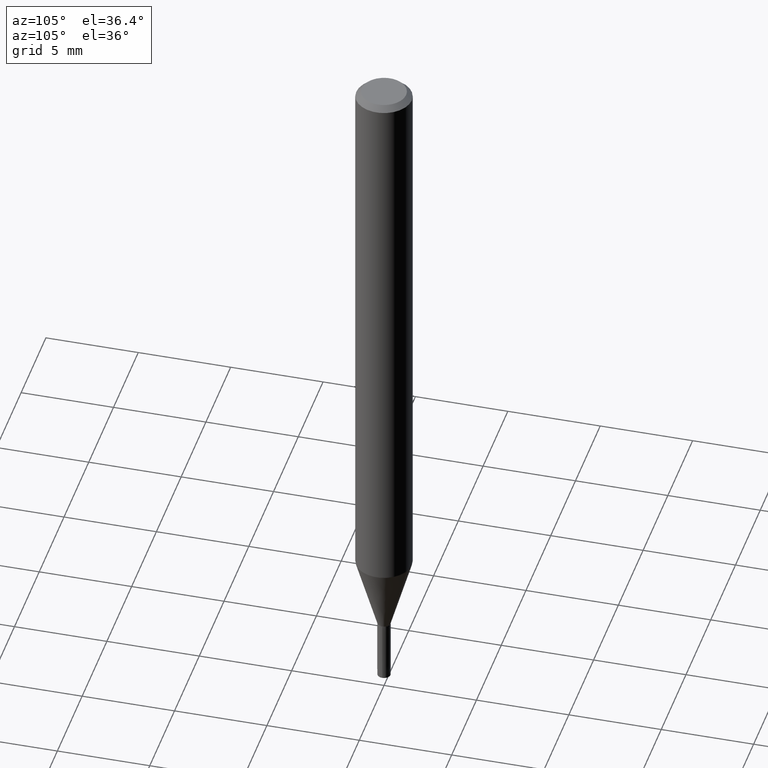
[diagram: clean part render]
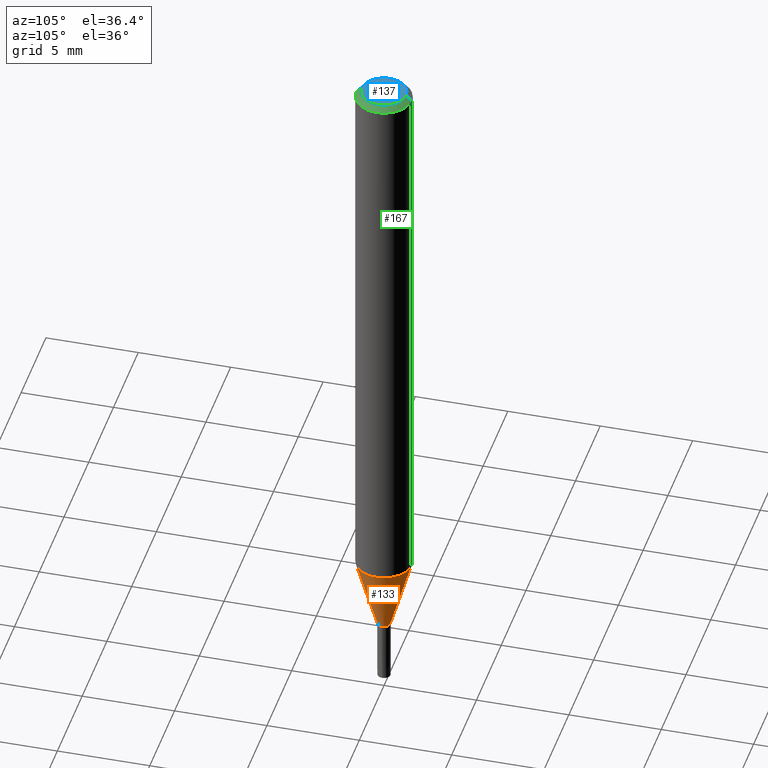
[diagram: same view with three faces highlighted in distinct colors, each labeled with its STEP entity id]
A machine part, auxiliary view with three faces highlighted in distinct colors.
Their STEP definitions:

[orange] entity #133 — the highlighted conical surface has half-angle 16.001 deg.
#91=VERTEX_POINT('',#226);
#105=VERTEX_POINT('',#241);
#113=EDGE_CURVE('',#105,#91,#252,.T.);
#133=ADVANCED_FACE('',(#275),#276,.T.);
#135=EDGE_CURVE('',#91,#157,#278,.T.);
#149=EDGE_CURVE('',#157,#163,#293,.T.);
#151=EDGE_CURVE('',#105,#163,#295,.T.);
#157=VERTEX_POINT('',#301);
#163=VERTEX_POINT('',#308);
#226=CARTESIAN_POINT('',(0.0,0.35,-34.4991339745962));
#241=CARTESIAN_POINT('',(0.0,1.5,-30.489));
#252=LINE('',#395,#396);
#275=FACE_OUTER_BOUND('',#424,.T.);
#276=CONICAL_SURFACE('',#425,0.925,0.279278622561771);
#278=CIRCLE('',#428,0.35);
#293=LINE('',#451,#452);
#295=CIRCLE('',#455,1.5);
#301=CARTESIAN_POINT('',(4.28612223837832E-017,-0.35,-34.4991339745962));
#308=CARTESIAN_POINT('',(1.83690953073357E-016,-1.5,-30.489));
#395=CARTESIAN_POINT('',(-1.1327608772857E-016,0.925,-32.4940669872981));
#396=VECTOR('',#570,1.0);
#424=EDGE_LOOP('',(#609,#610,#611,#612));
#425=AXIS2_PLACEMENT_3D('',#613,#614,#615);
#428=AXIS2_PLACEMENT_3D('',#616,#617,#618);
#451=CARTESIAN_POINT('',(1.1327608772857E-016,-0.925,-32.4940669872981));
#452=VECTOR('',#631,1.0);
#455=AXIS2_PLACEMENT_3D('',#632,#633,#634);
#570=DIRECTION('',(3.37577795527378E-017,-0.275662293008437,-0.96125454496368));
#609=ORIENTED_EDGE('',*,*,#113,.F.);
#610=ORIENTED_EDGE('',*,*,#151,.T.);
#611=ORIENTED_EDGE('',*,*,#149,.F.);
#612=ORIENTED_EDGE('',*,*,#135,.F.);
#613=CARTESIAN_POINT('',(0.0,0.0,-32.4940669872981));
#614=DIRECTION('',(-0.0,-0.0,1.0));
#615=DIRECTION('',(0.0,1.0,0.0));
#616=CARTESIAN_POINT('',(0.0,0.0,-34.4991339745962));
#617=DIRECTION('',(0.0,0.0,-1.0));
#618=DIRECTION('',(0.0,1.0,0.0));
#631=DIRECTION('',(3.37577795527378E-017,-0.275662293008437,0.96125454496368));
#632=CARTESIAN_POINT('',(0.0,0.0,-30.489));
#633=DIRECTION('',(0.0,0.0,-1.0));
#634=DIRECTION('',(0.0,1.0,0.0));

[blue] entity #137 — the highlighted planar face has unit normal (-0, 0, 1).
#115=EDGE_CURVE('',#183,#173,#254,.T.);
#137=ADVANCED_FACE('',(#280),#281,.T.);
#173=VERTEX_POINT('',#320);
#183=VERTEX_POINT('',#330);
#201=EDGE_CURVE('',#173,#183,#350,.T.);
#254=CIRCLE('',#399,1.2);
#280=FACE_OUTER_BOUND('',#430,.T.);
#281=PLANE('',#431);
#320=CARTESIAN_POINT('',(1.46952762458685E-016,-1.2,0.0));
#330=CARTESIAN_POINT('',(0.0,1.2,0.0));
#350=CIRCLE('',#528,1.2);
#399=AXIS2_PLACEMENT_3D('',#571,#572,#573);
#430=EDGE_LOOP('',(#620,#621));
#431=AXIS2_PLACEMENT_3D('',#622,#623,#624);
#528=AXIS2_PLACEMENT_3D('',#692,#693,#694);
#571=CARTESIAN_POINT('',(0.0,0.0,0.0));
#572=DIRECTION('',(0.0,0.0,-1.0));
#573=DIRECTION('',(0.0,1.0,0.0));
#620=ORIENTED_EDGE('',*,*,#115,.F.);
#621=ORIENTED_EDGE('',*,*,#201,.F.);
#622=CARTESIAN_POINT('',(0.0,0.6,0.0));
#623=DIRECTION('',(-0.0,0.0,1.0));
#624=DIRECTION('',(0.0,-1.0,0.0));
#692=CARTESIAN_POINT('',(0.0,0.0,0.0));
#693=DIRECTION('',(0.0,0.0,-1.0));
#694=DIRECTION('',(0.0,1.0,0.0));

[green] entity #167 — the highlighted conical surface has half-angle 45 deg.
#95=VERTEX_POINT('',#231);
#115=EDGE_CURVE('',#183,#173,#254,.T.);
#125=VERTEX_POINT('',#265);
#153=EDGE_CURVE('',#183,#125,#297,.T.);
#167=ADVANCED_FACE('',(#312),#313,.T.);
#173=VERTEX_POINT('',#320);
#181=EDGE_CURVE('',#125,#95,#328,.T.);
#183=VERTEX_POINT('',#330);
#187=EDGE_CURVE('',#95,#173,#335,.T.);
#231=CARTESIAN_POINT('',(1.83690953073357E-016,-1.5,-0.300000000000001));
#254=CIRCLE('',#399,1.2);
#265=CARTESIAN_POINT('',(0.0,1.5,-0.300000000000001));
#297=LINE('',#458,#459);
#312=FACE_OUTER_BOUND('',#475,.T.);
#313=CONICAL_SURFACE('',#476,1.35,0.785398163397447);
#320=CARTESIAN_POINT('',(1.46952762458685E-016,-1.2,0.0));
#328=CIRCLE('',#495,1.5);
#330=CARTESIAN_POINT('',(0.0,1.2,0.0));
#335=LINE('',#503,#504);
#399=AXIS2_PLACEMENT_3D('',#571,#572,#573);
#458=CARTESIAN_POINT('',(-1.65321857766021E-016,1.35,-0.149999999999999));
#459=VECTOR('',#635,1.0);
#475=EDGE_LOOP('',(#645,#646,#647,#648));
#476=AXIS2_PLACEMENT_3D('',#649,#650,#651);
#495=AXIS2_PLACEMENT_3D('',#664,#665,#666);
#503=CARTESIAN_POINT('',(1.65321857766021E-016,-1.35,-0.149999999999999));
#504=VECTOR('',#675,1.0);
#571=CARTESIAN_POINT('',(0.0,0.0,0.0));
#572=DIRECTION('',(0.0,0.0,-1.0));
#573=DIRECTION('',(0.0,1.0,0.0));
#635=DIRECTION('',(-8.65927457071934E-017,0.707106781186546,-0.707106781186549));
#645=ORIENTED_EDGE('',*,*,#153,.F.);
#646=ORIENTED_EDGE('',*,*,#115,.T.);
#647=ORIENTED_EDGE('',*,*,#187,.F.);
#648=ORIENTED_EDGE('',*,*,#181,.F.);
#649=CARTESIAN_POINT('',(0.0,0.0,-0.149999999999999));
#650=DIRECTION('',(0.0,-0.0,-1.0));
#651=DIRECTION('',(0.0,1.0,0.0));
#664=CARTESIAN_POINT('',(0.0,0.0,-0.300000000000001));
#665=DIRECTION('',(0.0,0.0,-1.0));
#666=DIRECTION('',(0.0,1.0,0.0));
#675=DIRECTION('',(-8.65927457071934E-017,0.707106781186546,0.707106781186549));